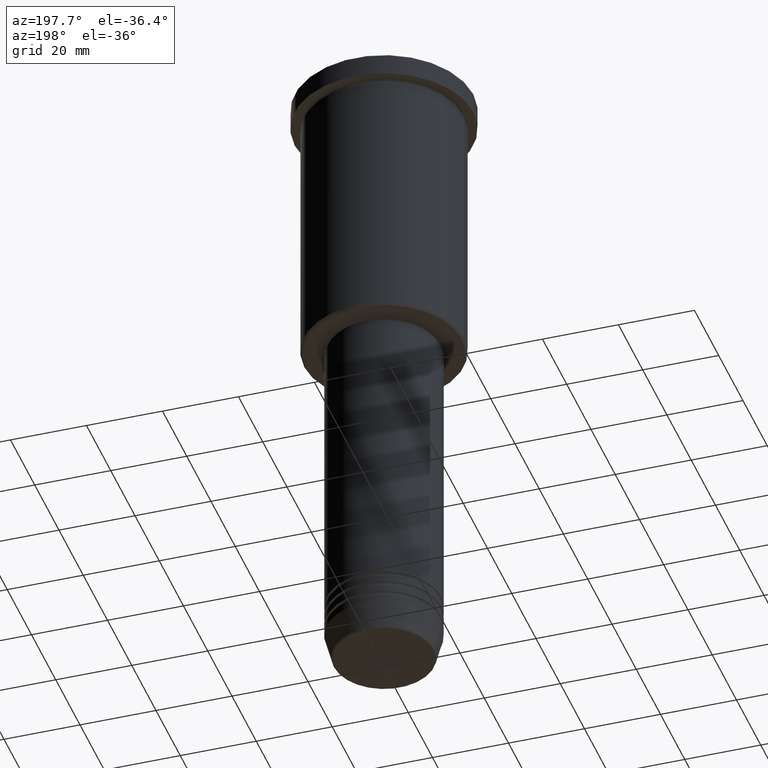
[diagram: clean part render]
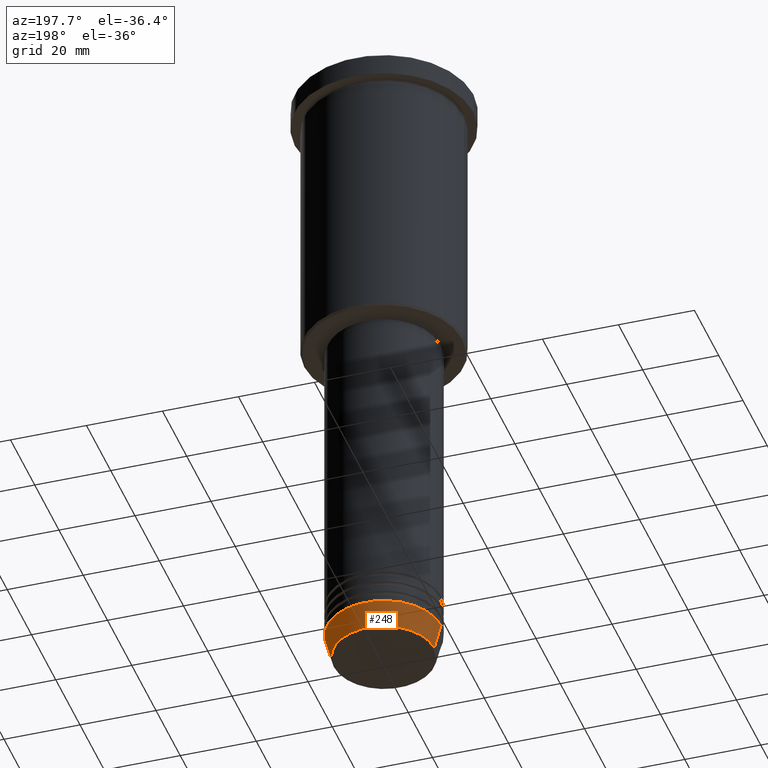
[diagram: same view with one face highlighted and labeled with its STEP entity id]
A machine part, auxiliary view. The second image highlights one B-rep face of the part: STEP entity #248.
In plain terms, the highlighted conical surface has half-angle 15 deg.
Its self-contained STEP definition (entity closure, byte-faithful):
#20 = VERTEX_POINT ( 'NONE', #647 ) ;
#43 = VERTEX_POINT ( 'NONE', #409 ) ;
#99 = EDGE_CURVE ( 'NONE', #43, #645, #696, .T. ) ;
#111 = AXIS2_PLACEMENT_3D ( 'NONE', #945, #504, #495 ) ;
#122 = EDGE_CURVE ( 'NONE', #916, #43, #1020, .T. ) ;
#169 = CARTESIAN_POINT ( 'NONE',  ( 15.00000000000000000, 0.000000000000000000, -164.0000000000000000 ) ) ;
#248 = ADVANCED_FACE ( 'NONE', ( #318 ), #829, .T. ) ;
#252 = DIRECTION ( 'NONE',  ( -0.000000000000000000, -0.000000000000000000, 1.000000000000000000 ) ) ;
#309 = ORIENTED_EDGE ( 'NONE', *, *, #122, .T. ) ;
#318 = FACE_OUTER_BOUND ( 'NONE', #320, .T. ) ;
#320 = EDGE_LOOP ( 'NONE', ( #309, #1166, #1175, #467 ) ) ;
#331 = DIRECTION ( 'NONE',  ( 1.000000000000000000, 0.000000000000000000, 0.000000000000000000 ) ) ;
#370 = CARTESIAN_POINT ( 'NONE',  ( -15.00000000000000000, 1.836970198721029589E-15, -164.0000000000000000 ) ) ;
#409 = CARTESIAN_POINT ( 'NONE',  ( -13.22365507213719305, 1.728200442216588583E-15, -170.6294095225512422 ) ) ;
#410 = DIRECTION ( 'NONE',  ( 1.000000000000000000, 0.000000000000000000, 0.000000000000000000 ) ) ;
#414 = CARTESIAN_POINT ( 'NONE',  ( 0.000000000000000000, 0.000000000000000000, -164.0000000000000000 ) ) ;
#467 = ORIENTED_EDGE ( 'NONE', *, *, #1092, .F. ) ;
#495 = DIRECTION ( 'NONE',  ( 1.000000000000000000, 0.000000000000000000, 0.000000000000000000 ) ) ;
#504 = DIRECTION ( 'NONE',  ( -0.000000000000000000, -0.000000000000000000, 1.000000000000000000 ) ) ;
#509 = CARTESIAN_POINT ( 'NONE',  ( -15.00000000000000000, 1.836970198721029589E-15, -164.0000000000000000 ) ) ;
#593 = AXIS2_PLACEMENT_3D ( 'NONE', #414, #1145, #331 ) ;
#594 = DIRECTION ( 'NONE',  ( -0.2588190451025213501, 3.169619151431772337E-17, 0.9659258262890680902 ) ) ;
#645 = VERTEX_POINT ( 'NONE', #370 ) ;
#647 = CARTESIAN_POINT ( 'NONE',  ( 15.00000000000000000, 0.000000000000000000, -164.0000000000000000 ) ) ;
#692 = VECTOR ( 'NONE', #594, 1000.000000000000000 ) ;
#696 = LINE ( 'NONE', #509, #692 ) ;
#732 = AXIS2_PLACEMENT_3D ( 'NONE', #780, #252, #410 ) ;
#780 = CARTESIAN_POINT ( 'NONE',  ( 0.000000000000000000, 0.000000000000000000, -170.6294095225512422 ) ) ;
#781 = CARTESIAN_POINT ( 'NONE',  ( 13.22365507213719305, 0.000000000000000000, -170.6294095225512422 ) ) ;
#818 = LINE ( 'NONE', #169, #965 ) ;
#829 = CONICAL_SURFACE ( 'NONE', #593, 15.00000000000000000, 0.2617993877991500740 ) ;
#886 = DIRECTION ( 'NONE',  ( 0.2588190451025213501, 0.000000000000000000, 0.9659258262890680902 ) ) ;
#916 = VERTEX_POINT ( 'NONE', #781 ) ;
#945 = CARTESIAN_POINT ( 'NONE',  ( 0.000000000000000000, 0.000000000000000000, -164.0000000000000000 ) ) ;
#965 = VECTOR ( 'NONE', #886, 1000.000000000000000 ) ;
#1020 = CIRCLE ( 'NONE', #732, 13.22365507213719305 ) ;
#1028 = EDGE_CURVE ( 'NONE', #20, #645, #1096, .T. ) ;
#1092 = EDGE_CURVE ( 'NONE', #916, #20, #818, .T. ) ;
#1096 = CIRCLE ( 'NONE', #111, 15.00000000000000000 ) ;
#1145 = DIRECTION ( 'NONE',  ( -0.000000000000000000, -0.000000000000000000, 1.000000000000000000 ) ) ;
#1166 = ORIENTED_EDGE ( 'NONE', *, *, #99, .T. ) ;
#1175 = ORIENTED_EDGE ( 'NONE', *, *, #1028, .F. ) ;